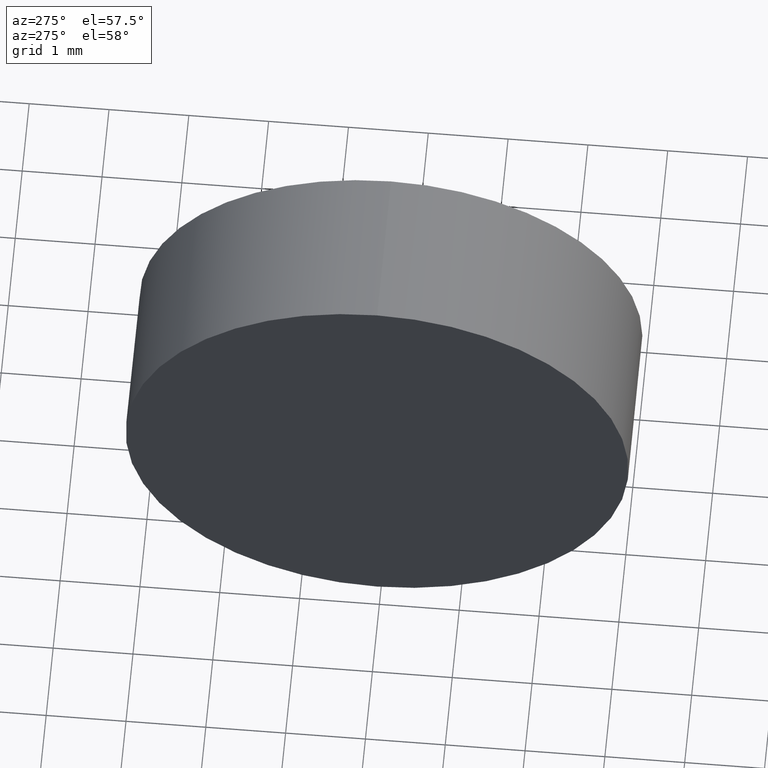
[diagram: clean part render]
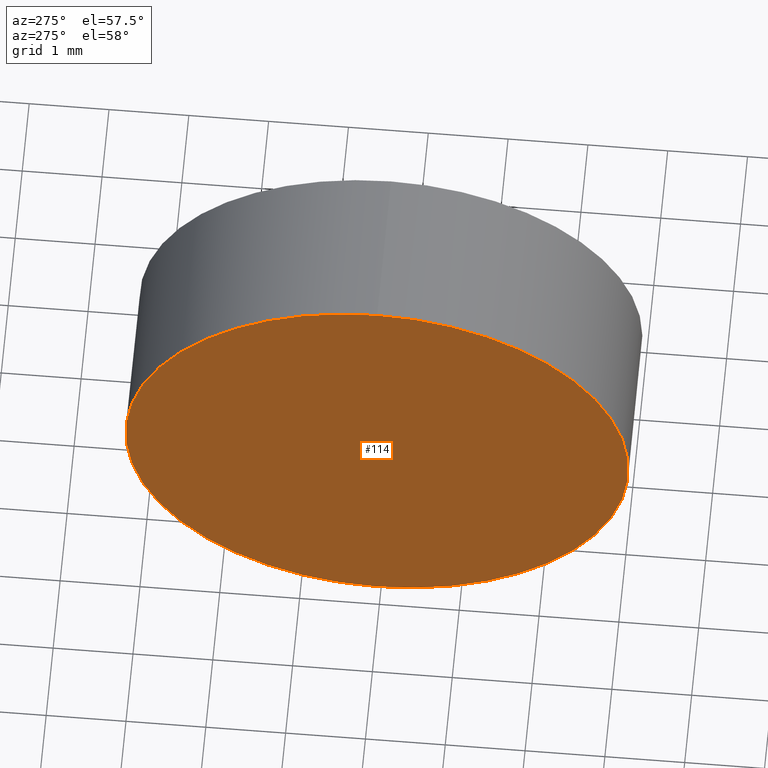
[diagram: same view with one face highlighted and labeled with its STEP entity id]
A machine part, auxiliary view. The second image highlights one B-rep face of the part: STEP entity #114.
In plain terms, the highlighted planar face has unit normal (1, 0, 0).
Its self-contained STEP definition (entity closure, byte-faithful):
#17 = DIRECTION ( 'NONE',  ( 1.000000000000000000, 0.0000000000000000000, 0.0000000000000000000 ) ) ;
#20 = EDGE_LOOP ( 'NONE', ( #72, #34 ) ) ;
#33 = CARTESIAN_POINT ( 'NONE',  ( 22.17218947520228100, 13.04452057459747900, 0.0000000000000000000 ) ) ;
#34 = ORIENTED_EDGE ( 'NONE', *, *, #127, .T. ) ;
#40 = AXIS2_PLACEMENT_3D ( 'NONE', #164, #17, #87 ) ;
#48 = CARTESIAN_POINT ( 'NONE',  ( 22.17218947520228100, 13.04452057459747900, -3.150000000000001700 ) ) ;
#55 = VERTEX_POINT ( 'NONE', #98 ) ;
#60 = AXIS2_PLACEMENT_3D ( 'NONE', #135, #186, #63 ) ;
#63 = DIRECTION ( 'NONE',  ( 0.0000000000000000000, 0.0000000000000000000, 1.000000000000000000 ) ) ;
#68 = CIRCLE ( 'NONE', #95, 3.150000000000001700 ) ;
#69 = PLANE ( 'NONE',  #40 ) ;
#70 = DIRECTION ( 'NONE',  ( 0.0000000000000000000, 0.0000000000000000000, 1.000000000000000000 ) ) ;
#72 = ORIENTED_EDGE ( 'NONE', *, *, #89, .T. ) ;
#87 = DIRECTION ( 'NONE',  ( 0.0000000000000000000, 0.0000000000000000000, -1.000000000000000000 ) ) ;
#89 = EDGE_CURVE ( 'NONE', #55, #158, #68, .T. ) ;
#95 = AXIS2_PLACEMENT_3D ( 'NONE', #33, #154, #70 ) ;
#98 = CARTESIAN_POINT ( 'NONE',  ( 22.17218947520228100, 13.04452057459747900, 3.150000000000001700 ) ) ;
#106 = CIRCLE ( 'NONE', #60, 3.150000000000001700 ) ;
#112 = FACE_OUTER_BOUND ( 'NONE', #20, .T. ) ;
#114 = ADVANCED_FACE ( 'NONE', ( #112 ), #69, .F. ) ;
#127 = EDGE_CURVE ( 'NONE', #158, #55, #106, .T. ) ;
#135 = CARTESIAN_POINT ( 'NONE',  ( 22.17218947520228100, 13.04452057459747900, 0.0000000000000000000 ) ) ;
#154 = DIRECTION ( 'NONE',  ( -1.000000000000000000, -0.0000000000000000000, -0.0000000000000000000 ) ) ;
#158 = VERTEX_POINT ( 'NONE', #48 ) ;
#164 = CARTESIAN_POINT ( 'NONE',  ( 22.17218947520228100, 13.04452057459747900, 0.0000000000000000000 ) ) ;
#186 = DIRECTION ( 'NONE',  ( -1.000000000000000000, -0.0000000000000000000, -0.0000000000000000000 ) ) ;